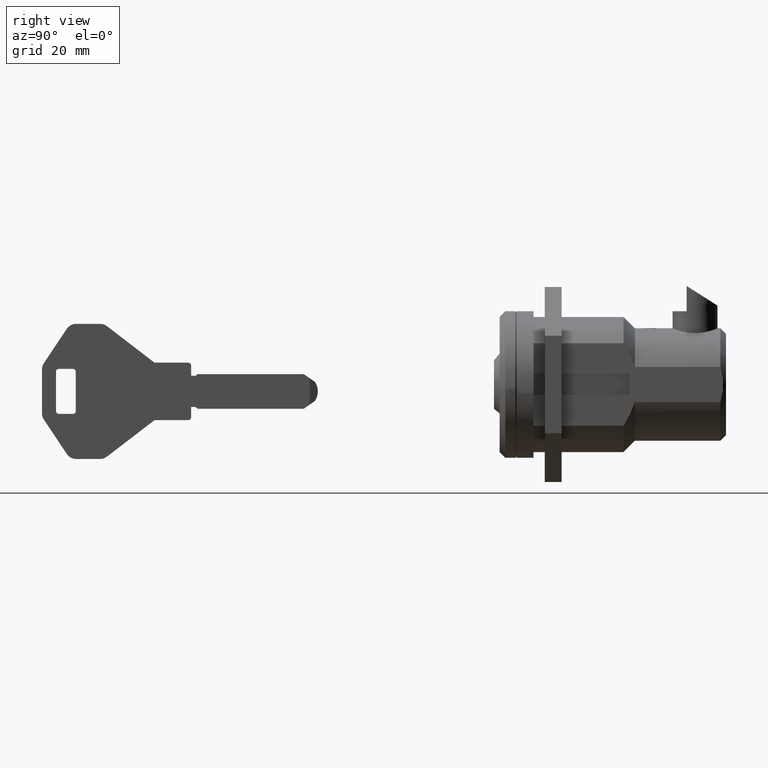
[diagram: clean part render]
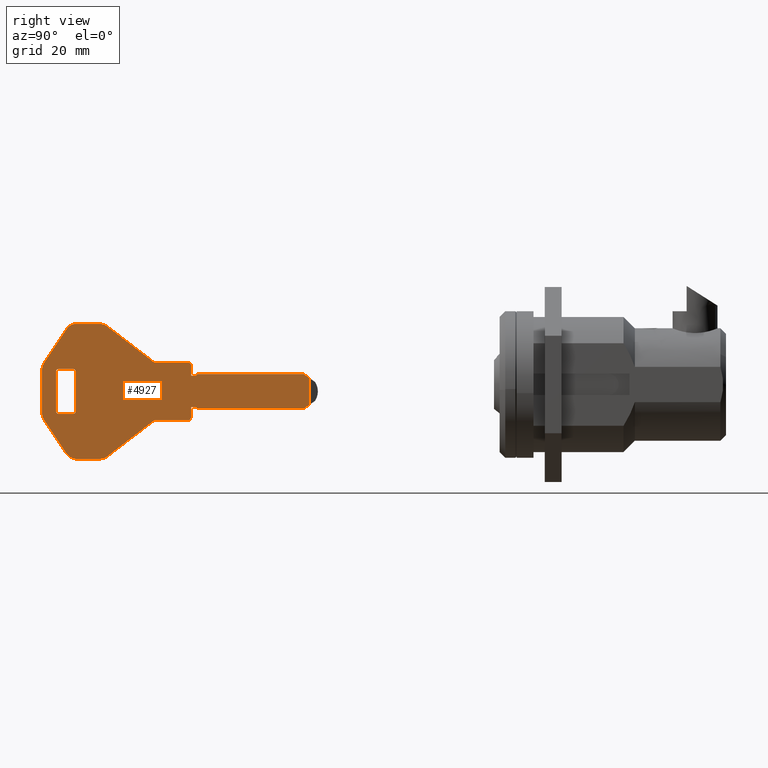
[diagram: same view with one face highlighted and labeled with its STEP entity id]
A machine part, right view. The second image highlights one B-rep face of the part: STEP entity #4927.
In plain terms, the highlighted face is a freeform B-spline surface patch.
Its self-contained STEP definition (entity closure, byte-faithful):
#4537=CARTESIAN_POINT('',(-32.752526098133643,-0.900000000000119,-3.583327357531530));
#4538=VERTEX_POINT('',#4537);
#4539=CARTESIAN_POINT('',(-32.752526098133352,-0.900000000000000,1.133327357528690));
#4540=VERTEX_POINT('',#4539);
#4541=CARTESIAN_POINT('',(-32.752526098133643,-0.900000000000119,-3.583327357531530));
#4542=CARTESIAN_POINT('',(-32.752526098133352,-0.900000000000000,1.133327357528690));
#4543=QUASI_UNIFORM_CURVE('',1,(#4541,#4542),.UNSPECIFIED.,.F.,.U.);
#4544=EDGE_CURVE('',#4538,#4540,#4543,.T.);
#4576=CARTESIAN_POINT('',(-82.654292525902576,-0.900000000000000,11.973799728187171));
#4577=CARTESIAN_POINT('',(-30.378513545708220,-0.900000000000000,11.973799728187171));
#4578=CARTESIAN_POINT('',(-82.654292525902576,-0.900000000000000,-14.423800586496720));
#4579=CARTESIAN_POINT('',(-30.378513545708220,-0.900000000000000,-14.423800586496720));
#4580=B_SPLINE_SURFACE_WITH_KNOTS('',1,1,((#4576,#4578),(#4577,#4579)),.UNSPECIFIED.,.F.,.F.,.U.,(2,2),(2,2),(0.0,52.275778980194360),(0.0,26.397600314683888),.UNSPECIFIED.);
#4581=ORIENTED_EDGE('',*,*,#4544,.T.);
#4582=CARTESIAN_POINT('',(-33.780282098133647,-0.900000000000012,1.849999999998575));
#4583=VERTEX_POINT('',#4582);
#4584=CARTESIAN_POINT('',(-33.780282098133647,-0.900000000000012,1.849999999998575));
#4585=CARTESIAN_POINT('',(-32.752526098133352,-0.900000000000000,1.133327357528690));
#4586=QUASI_UNIFORM_CURVE('',1,(#4584,#4585),.UNSPECIFIED.,.F.,.U.);
#4587=EDGE_CURVE('',#4583,#4540,#4586,.T.);
#4588=ORIENTED_EDGE('',*,*,#4587,.F.);
#4589=CARTESIAN_POINT('',(-52.680282098133702,-0.900000000000012,1.849999999998685));
#4590=VERTEX_POINT('',#4589);
#4591=CARTESIAN_POINT('',(-52.680282098133702,-0.900000000000012,1.849999999998685));
#4592=CARTESIAN_POINT('',(-33.780282098133647,-0.900000000000012,1.849999999998575));
#4593=QUASI_UNIFORM_CURVE('',1,(#4591,#4592),.UNSPECIFIED.,.F.,.U.);
#4594=EDGE_CURVE('',#4590,#4583,#4593,.T.);
#4595=ORIENTED_EDGE('',*,*,#4594,.F.);
#4596=CARTESIAN_POINT('',(-52.980282098133799,-0.900000000000012,1.549999999998675));
#4597=VERTEX_POINT('',#4596);
#4598=CARTESIAN_POINT('',(-52.980282098133799,-0.900000000000012,1.549999999998675));
#4599=CARTESIAN_POINT('',(-52.680282098133702,-0.900000000000012,1.849999999998685));
#4600=QUASI_UNIFORM_CURVE('',1,(#4598,#4599),.UNSPECIFIED.,.F.,.U.);
#4601=EDGE_CURVE('',#4597,#4590,#4600,.T.);
#4602=ORIENTED_EDGE('',*,*,#4601,.F.);
#4603=CARTESIAN_POINT('',(-53.780282098133597,-0.900000000000012,1.549999999998675));
#4604=VERTEX_POINT('',#4603);
#4605=CARTESIAN_POINT('',(-53.780282098133597,-0.900000000000012,1.549999999998675));
#4606=CARTESIAN_POINT('',(-52.980282098133799,-0.900000000000012,1.549999999998675));
#4607=QUASI_UNIFORM_CURVE('',1,(#4605,#4606),.UNSPECIFIED.,.F.,.U.);
#4608=EDGE_CURVE('',#4604,#4597,#4607,.T.);
#4609=ORIENTED_EDGE('',*,*,#4608,.F.);
#4610=CARTESIAN_POINT('',(-53.780282098133597,-0.900000000000012,3.374999999998695));
#4611=VERTEX_POINT('',#4610);
#4612=CARTESIAN_POINT('',(-53.780282098133597,-0.900000000000012,3.374999999998695));
#4613=CARTESIAN_POINT('',(-53.780282098133597,-0.900000000000012,1.549999999998675));
#4614=QUASI_UNIFORM_CURVE('',1,(#4612,#4613),.UNSPECIFIED.,.F.,.U.);
#4615=EDGE_CURVE('',#4611,#4604,#4614,.T.);
#4616=ORIENTED_EDGE('',*,*,#4615,.F.);
#4617=CARTESIAN_POINT('',(-54.280282098133597,-0.900000000000012,3.874999999998695));
#4618=VERTEX_POINT('',#4617);
#4619=CARTESIAN_POINT('',(-53.780282098133597,-0.900000000000012,3.374999999998695));
#4620=CARTESIAN_POINT('',(-53.780282098133583,-0.900000000000012,3.874999999998695));
#4621=CARTESIAN_POINT('',(-54.280282098133597,-0.900000000000012,3.874999999998695));
#4629=(BOUNDED_CURVE()B_SPLINE_CURVE(2,(#4619,#4620,#4621),.UNSPECIFIED.,.F.,.U.)CURVE()GEOMETRIC_REPRESENTATION_ITEM()QUASI_UNIFORM_CURVE()RATIONAL_B_SPLINE_CURVE((1.0,0.707106781186548,1.0))REPRESENTATION_ITEM(''));
#4630=EDGE_CURVE('',#4611,#4618,#4629,.T.);
#4631=ORIENTED_EDGE('',*,*,#4630,.T.);
#4632=CARTESIAN_POINT('',(-60.280282098133597,-0.900000000000012,3.874999999998695));
#4633=VERTEX_POINT('',#4632);
#4634=CARTESIAN_POINT('',(-60.280282098133597,-0.900000000000012,3.874999999998695));
#4635=CARTESIAN_POINT('',(-54.280282098133597,-0.900000000000012,3.874999999998695));
#4636=QUASI_UNIFORM_CURVE('',1,(#4634,#4635),.UNSPECIFIED.,.F.,.U.);
#4637=EDGE_CURVE('',#4633,#4618,#4636,.T.);
#4638=ORIENTED_EDGE('',*,*,#4637,.F.);
#4639=CARTESIAN_POINT('',(-68.741863998668208,-0.900000000000012,10.362212713266601));
#4640=VERTEX_POINT('',#4639);
#4641=CARTESIAN_POINT('',(-68.741863998668208,-0.900000000000012,10.362212713266601));
#4642=CARTESIAN_POINT('',(-60.280282098133597,-0.900000000000012,3.874999999998695));
#4643=QUASI_UNIFORM_CURVE('',1,(#4641,#4642),.UNSPECIFIED.,.F.,.U.);
#4644=EDGE_CURVE('',#4640,#4633,#4643,.T.);
#4645=ORIENTED_EDGE('',*,*,#4644,.F.);
#4646=CARTESIAN_POINT('',(-69.958727098133807,-0.900000000000012,10.774999999998659));
#4647=VERTEX_POINT('',#4646);
#4648=CARTESIAN_POINT('',(-68.741863998668194,-0.900000000000012,10.362212713266629));
#4649=CARTESIAN_POINT('',(-69.280282190216852,-0.900000000000012,10.774999999998675));
#4650=CARTESIAN_POINT('',(-69.958727098133593,-0.900000000000012,10.774999999998670));
#4658=(BOUNDED_CURVE()B_SPLINE_CURVE(2,(#4648,#4649,#4650),.UNSPECIFIED.,.F.,.U.)CURVE()GEOMETRIC_REPRESENTATION_ITEM()QUASI_UNIFORM_CURVE()RATIONAL_B_SPLINE_CURVE((1.0,0.946996926244742,1.0))REPRESENTATION_ITEM(''));
#4659=EDGE_CURVE('',#4640,#4647,#4658,.T.);
#4660=ORIENTED_EDGE('',*,*,#4659,.T.);
#4661=CARTESIAN_POINT('',(-74.209914914491108,-0.900000000000012,10.774999999998659));
#4662=VERTEX_POINT('',#4661);
#4663=CARTESIAN_POINT('',(-74.209914914491108,-0.900000000000012,10.774999999998659));
#4664=CARTESIAN_POINT('',(-69.958727098133807,-0.900000000000012,10.774999999998659));
#4665=QUASI_UNIFORM_CURVE('',1,(#4663,#4664),.UNSPECIFIED.,.F.,.U.);
#4666=EDGE_CURVE('',#4662,#4647,#4665,.T.);
#4667=ORIENTED_EDGE('',*,*,#4666,.F.);
#4668=CARTESIAN_POINT('',(-75.874015521997094,-0.900000000000012,9.884400364203660));
#4669=VERTEX_POINT('',#4668);
#4670=CARTESIAN_POINT('',(-74.209914914491108,-0.900000000000012,10.774999999998670));
#4671=CARTESIAN_POINT('',(-75.280282453302064,-0.900000000000012,10.774999999998672));
#4672=CARTESIAN_POINT('',(-75.874015521997094,-0.900000000000012,9.884400364203664));
#4680=(BOUNDED_CURVE()B_SPLINE_CURVE(2,(#4670,#4671,#4672),.UNSPECIFIED.,.F.,.U.)CURVE()GEOMETRIC_REPRESENTATION_ITEM()QUASI_UNIFORM_CURVE()RATIONAL_B_SPLINE_CURVE((1.0,0.881674594763424,1.0))REPRESENTATION_ITEM(''));
#4681=EDGE_CURVE('',#4662,#4669,#4680,.T.);
#4682=ORIENTED_EDGE('',*,*,#4681,.T.);
#4683=CARTESIAN_POINT('',(-79.944382677631097,-0.900000000000012,3.778849406216610));
#4684=VERTEX_POINT('',#4683);
#4685=CARTESIAN_POINT('',(-79.944382677631097,-0.900000000000012,3.778849406216610));
#4686=CARTESIAN_POINT('',(-75.874015521997094,-0.900000000000012,9.884400364203660));
#4687=QUASI_UNIFORM_CURVE('',1,(#4685,#4686),.UNSPECIFIED.,.F.,.U.);
#4688=EDGE_CURVE('',#4684,#4669,#4687,.T.);
#4689=ORIENTED_EDGE('',*,*,#4688,.F.);
#4690=CARTESIAN_POINT('',(-80.280282098133696,-0.900000000000012,2.669448999998680));
#4691=VERTEX_POINT('',#4690);
#4692=CARTESIAN_POINT('',(-79.944382677631083,-0.900000000000012,3.778849406216599));
#4693=CARTESIAN_POINT('',(-80.280282098133711,-0.900000000000012,3.275000284494314));
#4694=CARTESIAN_POINT('',(-80.280282098133711,-0.900000000000012,2.669448999998680));
#4702=(BOUNDED_CURVE()B_SPLINE_CURVE(2,(#4692,#4693,#4694),.UNSPECIFIED.,.F.,.U.)CURVE()GEOMETRIC_REPRESENTATION_ITEM()QUASI_UNIFORM_CURVE()RATIONAL_B_SPLINE_CURVE((1.0,0.957092025290330,1.0))REPRESENTATION_ITEM(''));
#4703=EDGE_CURVE('',#4684,#4691,#4702,.T.);
#4704=ORIENTED_EDGE('',*,*,#4703,.T.);
#4705=CARTESIAN_POINT('',(-80.280282098133696,-0.900000000000012,-5.119448000001310));
#4706=VERTEX_POINT('',#4705);
#4707=CARTESIAN_POINT('',(-80.280282098133696,-0.900000000000012,-5.119448000001310));
#4708=CARTESIAN_POINT('',(-80.280282098133696,-0.900000000000012,2.669448999998680));
#4709=QUASI_UNIFORM_CURVE('',1,(#4707,#4708),.UNSPECIFIED.,.F.,.U.);
#4710=EDGE_CURVE('',#4706,#4691,#4709,.T.);
#4711=ORIENTED_EDGE('',*,*,#4710,.F.);
#4712=CARTESIAN_POINT('',(-79.944383098133684,-0.900000000000012,-6.228849000001221));
#4713=VERTEX_POINT('',#4712);
#4714=CARTESIAN_POINT('',(-80.280282098133711,-0.900000000000012,-5.119448000001310));
#4715=CARTESIAN_POINT('',(-80.280282098133711,-0.900000000000012,-5.724999426853032));
#4716=CARTESIAN_POINT('',(-79.944383098133684,-0.900000000000012,-6.228849000001221));
#4724=(BOUNDED_CURVE()B_SPLINE_CURVE(2,(#4714,#4715,#4716),.UNSPECIFIED.,.F.,.U.)CURVE()GEOMETRIC_REPRESENTATION_ITEM()QUASI_UNIFORM_CURVE()RATIONAL_B_SPLINE_CURVE((1.0,0.957092006396147,1.0))REPRESENTATION_ITEM(''));
#4725=EDGE_CURVE('',#4706,#4713,#4724,.T.);
#4726=ORIENTED_EDGE('',*,*,#4725,.T.);
#4727=CARTESIAN_POINT('',(-75.874015602946287,-0.900000000000012,-12.334400518246539));
#4728=VERTEX_POINT('',#4727);
#4729=CARTESIAN_POINT('',(-75.874015602946287,-0.900000000000012,-12.334400518246539));
#4730=CARTESIAN_POINT('',(-79.944383098133684,-0.900000000000012,-6.228849000001221));
#4731=QUASI_UNIFORM_CURVE('',1,(#4729,#4730),.UNSPECIFIED.,.F.,.U.);
#4732=EDGE_CURVE('',#4728,#4713,#4731,.T.);
#4733=ORIENTED_EDGE('',*,*,#4732,.F.);
#4734=CARTESIAN_POINT('',(-74.209915098133806,-0.900000000000012,-13.225000000001319));
#4735=VERTEX_POINT('',#4734);
#4736=CARTESIAN_POINT('',(-75.874015602946301,-0.900000000000012,-12.334400518246550));
#4737=CARTESIAN_POINT('',(-75.280282517865004,-0.900000000000012,-13.225000000001318));
#4738=CARTESIAN_POINT('',(-74.209915098133806,-0.900000000000012,-13.225000000001319));
#4746=(BOUNDED_CURVE()B_SPLINE_CURVE(2,(#4736,#4737,#4738),.UNSPECIFIED.,.F.,.U.)CURVE()GEOMETRIC_REPRESENTATION_ITEM()QUASI_UNIFORM_CURVE()RATIONAL_B_SPLINE_CURVE((1.0,0.881674616602581,1.0))REPRESENTATION_ITEM(''));
#4747=EDGE_CURVE('',#4728,#4735,#4746,.T.);
#4748=ORIENTED_EDGE('',*,*,#4747,.T.);
#4749=CARTESIAN_POINT('',(-69.958727098133807,-0.900000000000012,-13.225000000001319));
#4750=VERTEX_POINT('',#4749);
#4751=CARTESIAN_POINT('',(-69.958727098133807,-0.900000000000012,-13.225000000001319));
#4752=CARTESIAN_POINT('',(-74.209915098133806,-0.900000000000012,-13.225000000001319));
#4753=QUASI_UNIFORM_CURVE('',1,(#4751,#4752),.UNSPECIFIED.,.F.,.U.);
#4754=EDGE_CURVE('',#4750,#4735,#4753,.T.);
#4755=ORIENTED_EDGE('',*,*,#4754,.F.);
#4756=CARTESIAN_POINT('',(-68.741864098133803,-0.900000000000012,-12.812213000001320));
#4757=VERTEX_POINT('',#4756);
#4758=CARTESIAN_POINT('',(-69.958727098133807,-0.900000000000012,-13.225000000001319));
#4759=CARTESIAN_POINT('',(-69.280282331492870,-0.900000000000012,-13.225000000001319));
#4760=CARTESIAN_POINT('',(-68.741864098133803,-0.900000000000012,-12.812213000001320));
#4768=(BOUNDED_CURVE()B_SPLINE_CURVE(2,(#4758,#4759,#4760),.UNSPECIFIED.,.F.,.U.)CURVE()GEOMETRIC_REPRESENTATION_ITEM()QUASI_UNIFORM_CURVE()RATIONAL_B_SPLINE_CURVE((1.0,0.946996946594913,1.0))REPRESENTATION_ITEM(''));
#4769=EDGE_CURVE('',#4750,#4757,#4768,.T.);
#4770=ORIENTED_EDGE('',*,*,#4769,.T.);
#4771=CARTESIAN_POINT('',(-60.280282098133704,-0.900000000000012,-6.325000000001320));
#4772=VERTEX_POINT('',#4771);
#4773=CARTESIAN_POINT('',(-60.280282098133704,-0.900000000000012,-6.325000000001320));
#4774=CARTESIAN_POINT('',(-68.741864098133803,-0.900000000000012,-12.812213000001320));
#4775=QUASI_UNIFORM_CURVE('',1,(#4773,#4774),.UNSPECIFIED.,.F.,.U.);
#4776=EDGE_CURVE('',#4772,#4757,#4775,.T.);
#4777=ORIENTED_EDGE('',*,*,#4776,.F.);
#4778=CARTESIAN_POINT('',(-54.280282098133704,-0.900000000000012,-6.325000000001411));
#4779=VERTEX_POINT('',#4778);
#4780=CARTESIAN_POINT('',(-54.280282098133704,-0.900000000000012,-6.325000000001411));
#4781=CARTESIAN_POINT('',(-60.280282098133704,-0.900000000000012,-6.325000000001320));
#4782=QUASI_UNIFORM_CURVE('',1,(#4780,#4781),.UNSPECIFIED.,.F.,.U.);
#4783=EDGE_CURVE('',#4779,#4772,#4782,.T.);
#4784=ORIENTED_EDGE('',*,*,#4783,.F.);
#4785=CARTESIAN_POINT('',(-53.780282098133704,-0.900000000000012,-5.825000000001330));
#4786=VERTEX_POINT('',#4785);
#4787=CARTESIAN_POINT('',(-54.280282098133704,-0.900000000000012,-6.325000000001412));
#4788=CARTESIAN_POINT('',(-54.073175316947129,-0.900000000000012,-6.325000000001412));
#4789=CARTESIAN_POINT('',(-53.926728707540398,-0.900000000000012,-6.178553390594656));
#4790=CARTESIAN_POINT('',(-53.780282098133675,-0.900000000000012,-6.032106781187902));
#4791=CARTESIAN_POINT('',(-53.780282098133704,-0.900000000000012,-5.825000000001330));
#4799=(BOUNDED_CURVE()B_SPLINE_CURVE(2,(#4787,#4788,#4789,#4790,#4791),.UNSPECIFIED.,.F.,.U.)B_SPLINE_CURVE_WITH_KNOTS((3,2,3),(0.0,0.500000000000000,1.0),.UNSPECIFIED.)CURVE()GEOMETRIC_REPRESENTATION_ITEM()RATIONAL_B_SPLINE_CURVE((1.0,0.923879532511271,1.0,0.923879532511271,1.0))REPRESENTATION_ITEM(''));
#4800=EDGE_CURVE('',#4779,#4786,#4799,.T.);
#4801=ORIENTED_EDGE('',*,*,#4800,.T.);
#4802=CARTESIAN_POINT('',(-53.780282098133704,-0.900000000000012,-4.000000000001306));
#4803=VERTEX_POINT('',#4802);
#4804=CARTESIAN_POINT('',(-53.780282098133704,-0.900000000000012,-4.000000000001306));
#4805=CARTESIAN_POINT('',(-53.780282098133704,-0.900000000000012,-5.825000000001330));
#4806=QUASI_UNIFORM_CURVE('',1,(#4804,#4805),.UNSPECIFIED.,.F.,.U.);
#4807=EDGE_CURVE('',#4803,#4786,#4806,.T.);
#4808=ORIENTED_EDGE('',*,*,#4807,.F.);
#4809=CARTESIAN_POINT('',(-52.980282098133699,-0.900000000000012,-4.000000000001306));
#4810=VERTEX_POINT('',#4809);
#4811=CARTESIAN_POINT('',(-52.980282098133699,-0.900000000000012,-4.000000000001306));
#4812=CARTESIAN_POINT('',(-53.780282098133704,-0.900000000000012,-4.000000000001306));
#4813=QUASI_UNIFORM_CURVE('',1,(#4811,#4812),.UNSPECIFIED.,.F.,.U.);
#4814=EDGE_CURVE('',#4810,#4803,#4813,.T.);
#4815=ORIENTED_EDGE('',*,*,#4814,.F.);
#4816=CARTESIAN_POINT('',(-52.680282098133802,-0.900000000000012,-4.300000000001405));
#4817=VERTEX_POINT('',#4816);
#4818=CARTESIAN_POINT('',(-52.680282098133802,-0.900000000000012,-4.300000000001405));
#4819=CARTESIAN_POINT('',(-52.980282098133699,-0.900000000000012,-4.000000000001306));
#4820=QUASI_UNIFORM_CURVE('',1,(#4818,#4819),.UNSPECIFIED.,.F.,.U.);
#4821=EDGE_CURVE('',#4817,#4810,#4820,.T.);
#4822=ORIENTED_EDGE('',*,*,#4821,.F.);
#4823=CARTESIAN_POINT('',(-33.780282098133753,-0.900000000000012,-4.300000000001520));
#4824=VERTEX_POINT('',#4823);
#4825=CARTESIAN_POINT('',(-33.780282098133753,-0.900000000000012,-4.300000000001520));
#4826=CARTESIAN_POINT('',(-52.680282098133802,-0.900000000000012,-4.300000000001405));
#4827=QUASI_UNIFORM_CURVE('',1,(#4825,#4826),.UNSPECIFIED.,.F.,.U.);
#4828=EDGE_CURVE('',#4824,#4817,#4827,.T.);
#4829=ORIENTED_EDGE('',*,*,#4828,.F.);
#4830=CARTESIAN_POINT('',(-32.752526098133643,-0.900000000000119,-3.583327357531530));
#4831=CARTESIAN_POINT('',(-33.780282098133753,-0.900000000000012,-4.300000000001520));
#4832=QUASI_UNIFORM_CURVE('',1,(#4830,#4831),.UNSPECIFIED.,.F.,.U.);
#4833=EDGE_CURVE('',#4538,#4824,#4832,.T.);
#4834=ORIENTED_EDGE('',*,*,#4833,.F.);
#4835=EDGE_LOOP('',(#4581,#4588,#4595,#4602,#4609,#4616,#4631,#4638,#4645,#4660,#4667,#4682,#4689,#4704,#4711,#4726,#4733,#4748,#4755,#4770,#4777,#4784,#4801,#4808,#4815,#4822,#4829,#4834));
#4836=FACE_OUTER_BOUND('',#4835,.T.);
#4837=CARTESIAN_POINT('',(-77.280282098133696,-0.900000000000012,2.774999999998670));
#4838=VERTEX_POINT('',#4837);
#4839=CARTESIAN_POINT('',(-74.780282098133597,-0.900000000000012,2.774999999998670));
#4840=VERTEX_POINT('',#4839);
#4841=CARTESIAN_POINT('',(-77.280282098133696,-0.900000000000012,2.774999999998670));
#4842=CARTESIAN_POINT('',(-74.780282098133597,-0.900000000000012,2.774999999998670));
#4843=QUASI_UNIFORM_CURVE('',1,(#4841,#4842),.UNSPECIFIED.,.F.,.U.);
#4844=EDGE_CURVE('',#4838,#4840,#4843,.T.);
#4845=ORIENTED_EDGE('',*,*,#4844,.T.);
#4846=CARTESIAN_POINT('',(-74.280282098133597,-0.900000000000012,2.274999999998670));
#4847=VERTEX_POINT('',#4846);
#4848=CARTESIAN_POINT('',(-74.280282098133597,-0.900000000000012,2.274999999998670));
#4849=CARTESIAN_POINT('',(-74.280282098133597,-0.900000000000012,2.774999999998670));
#4850=CARTESIAN_POINT('',(-74.780282098133597,-0.900000000000012,2.774999999998670));
#4858=(BOUNDED_CURVE()B_SPLINE_CURVE(2,(#4848,#4849,#4850),.UNSPECIFIED.,.F.,.U.)CURVE()GEOMETRIC_REPRESENTATION_ITEM()QUASI_UNIFORM_CURVE()RATIONAL_B_SPLINE_CURVE((1.0,0.707106781186548,1.0))REPRESENTATION_ITEM(''));
#4859=EDGE_CURVE('',#4847,#4840,#4858,.T.);
#4860=ORIENTED_EDGE('',*,*,#4859,.F.);
#4861=CARTESIAN_POINT('',(-74.280282098133597,-0.900000000000012,-4.725000000001330));
#4862=VERTEX_POINT('',#4861);
#4863=CARTESIAN_POINT('',(-74.280282098133597,-0.900000000000012,2.274999999998670));
#4864=CARTESIAN_POINT('',(-74.280282098133597,-0.900000000000012,-4.725000000001330));
#4865=QUASI_UNIFORM_CURVE('',1,(#4863,#4864),.UNSPECIFIED.,.F.,.U.);
#4866=EDGE_CURVE('',#4847,#4862,#4865,.T.);
#4867=ORIENTED_EDGE('',*,*,#4866,.T.);
#4868=CARTESIAN_POINT('',(-74.780282098133597,-0.900000000000012,-5.224999000001310));
#4869=VERTEX_POINT('',#4868);
#4870=CARTESIAN_POINT('',(-74.780282098133597,-0.900000000000012,-5.224999000001301));
#4871=CARTESIAN_POINT('',(-74.280283098132628,-0.900000000000012,-5.224999000001301));
#4872=CARTESIAN_POINT('',(-74.280282098133597,-0.900000000000012,-4.725000000001330));
#4880=(BOUNDED_CURVE()B_SPLINE_CURVE(2,(#4870,#4871,#4872),.UNSPECIFIED.,.F.,.U.)CURVE()GEOMETRIC_REPRESENTATION_ITEM()QUASI_UNIFORM_CURVE()RATIONAL_B_SPLINE_CURVE((1.0,0.707107488292996,1.0))REPRESENTATION_ITEM(''));
#4881=EDGE_CURVE('',#4869,#4862,#4880,.T.);
#4882=ORIENTED_EDGE('',*,*,#4881,.F.);
#4883=CARTESIAN_POINT('',(-77.280282098133696,-0.900000000000012,-5.224999000001310));
#4884=VERTEX_POINT('',#4883);
#4885=CARTESIAN_POINT('',(-74.780282098133597,-0.900000000000012,-5.224999000001310));
#4886=CARTESIAN_POINT('',(-77.280282098133696,-0.900000000000012,-5.224999000001310));
#4887=QUASI_UNIFORM_CURVE('',1,(#4885,#4886),.UNSPECIFIED.,.F.,.U.);
#4888=EDGE_CURVE('',#4869,#4884,#4887,.T.);
#4889=ORIENTED_EDGE('',*,*,#4888,.T.);
#4890=CARTESIAN_POINT('',(-77.780282098133696,-0.900000000000012,-4.724999000001300));
#4891=VERTEX_POINT('',#4890);
#4892=CARTESIAN_POINT('',(-77.780282098133696,-0.900000000000012,-4.724999000001300));
#4893=CARTESIAN_POINT('',(-77.780282098133696,-0.900000000000012,-5.224999000001302));
#4894=CARTESIAN_POINT('',(-77.280282098133696,-0.900000000000012,-5.224999000001301));
#4902=(BOUNDED_CURVE()B_SPLINE_CURVE(2,(#4892,#4893,#4894),.UNSPECIFIED.,.F.,.U.)CURVE()GEOMETRIC_REPRESENTATION_ITEM()QUASI_UNIFORM_CURVE()RATIONAL_B_SPLINE_CURVE((1.0,0.707106781186548,1.0))REPRESENTATION_ITEM(''));
#4903=EDGE_CURVE('',#4891,#4884,#4902,.T.);
#4904=ORIENTED_EDGE('',*,*,#4903,.F.);
#4905=CARTESIAN_POINT('',(-77.780282098133696,-0.900000000000012,2.274999999998670));
#4906=VERTEX_POINT('',#4905);
#4907=CARTESIAN_POINT('',(-77.780282098133696,-0.900000000000012,-4.724999000001300));
#4908=CARTESIAN_POINT('',(-77.780282098133696,-0.900000000000012,2.274999999998670));
#4909=QUASI_UNIFORM_CURVE('',1,(#4907,#4908),.UNSPECIFIED.,.F.,.U.);
#4910=EDGE_CURVE('',#4891,#4906,#4909,.T.);
#4911=ORIENTED_EDGE('',*,*,#4910,.T.);
#4912=CARTESIAN_POINT('',(-77.280282098133696,-0.900000000000012,2.774999999998670));
#4913=CARTESIAN_POINT('',(-77.780282098133696,-0.900000000000012,2.774999999998670));
#4914=CARTESIAN_POINT('',(-77.780282098133696,-0.900000000000012,2.274999999998670));
#4922=(BOUNDED_CURVE()B_SPLINE_CURVE(2,(#4912,#4913,#4914),.UNSPECIFIED.,.F.,.U.)CURVE()GEOMETRIC_REPRESENTATION_ITEM()QUASI_UNIFORM_CURVE()RATIONAL_B_SPLINE_CURVE((1.0,0.707106781186548,1.0))REPRESENTATION_ITEM(''));
#4923=EDGE_CURVE('',#4838,#4906,#4922,.T.);
#4924=ORIENTED_EDGE('',*,*,#4923,.F.);
#4925=EDGE_LOOP('',(#4845,#4860,#4867,#4882,#4889,#4904,#4911,#4924));
#4926=FACE_BOUND('',#4925,.T.);
#4927=ADVANCED_FACE('',(#4836,#4926),#4580,.F.);